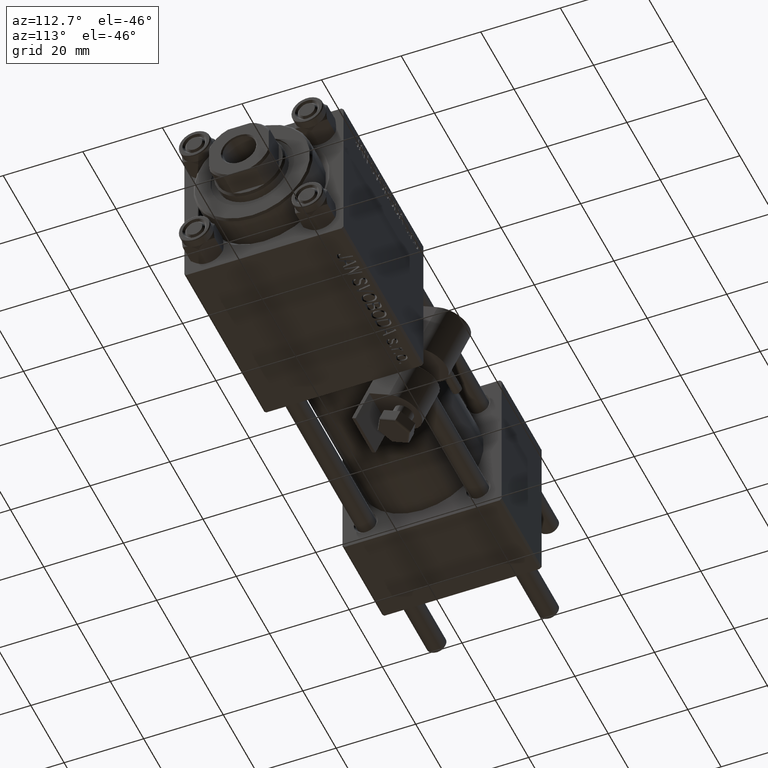
[diagram: clean part render]
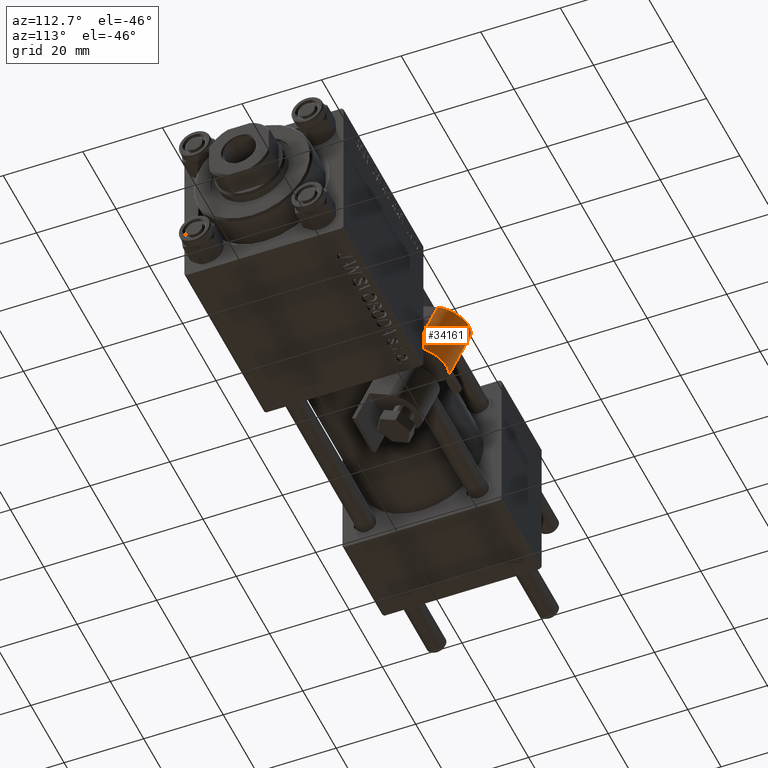
[diagram: same view with one face highlighted and labeled with its STEP entity id]
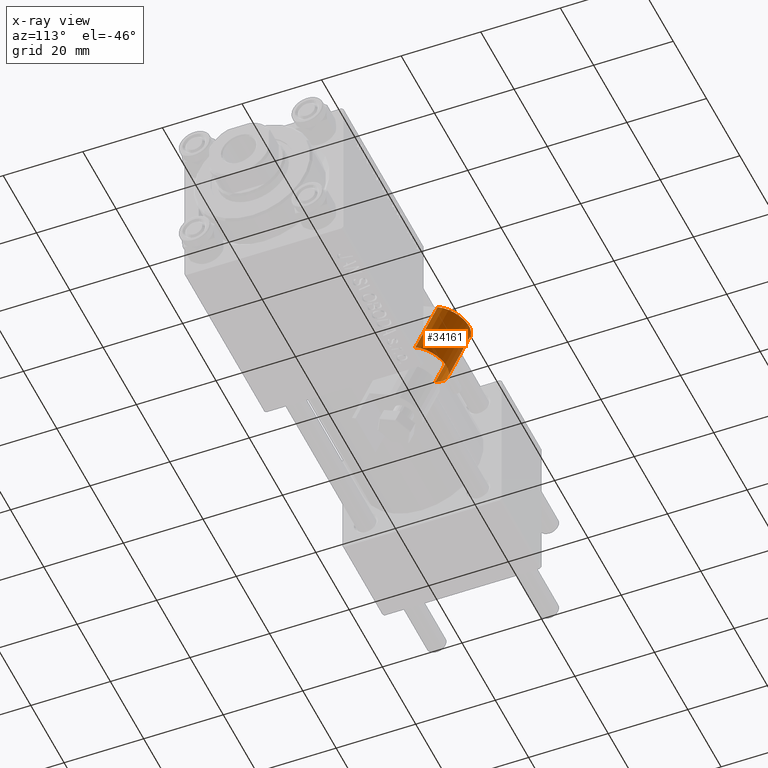
[diagram: x-ray of the same camera — body ghosted, the highlighted face saturated]
A machine part, auxiliary view. The second image highlights one B-rep face of the part: STEP entity #34161.
The next image is the same camera in x-ray: the body ghosted, the highlighted face saturated — about 0% of this face is hidden behind the body in this view.
In plain terms, the highlighted cylindrical surface (edge-blend (fillet) strip) has radius 6 mm, axis along (-0, -0.4495, -0.8933).
Its self-contained STEP definition (entity closure, byte-faithful):
#1403 = FACE_OUTER_BOUND ( 'NONE', #34371, .T. ) ;
#2477 = DIRECTION ( 'NONE',  ( 1.000000000000000000, 0.000000000000000000, 0.000000000000000000 ) ) ;
#3778 = ORIENTED_EDGE ( 'NONE', *, *, #26192, .F. ) ;
#5350 = LINE ( 'NONE', #12548, #20762 ) ;
#6240 = CARTESIAN_POINT ( 'NONE',  ( 14.74000000000000021, 6.499999999999999112, 6.000000000000006217 ) ) ;
#6497 = EDGE_CURVE ( 'NONE', #7968, #33348, #5350, .T. ) ;
#7968 = VERTEX_POINT ( 'NONE', #38916 ) ;
#9061 = DIRECTION ( 'NONE',  ( 1.000000000000000000, 0.000000000000000000, 0.000000000000000000 ) ) ;
#9712 = DIRECTION ( 'NONE',  ( -1.000000000000000000, -0.000000000000000000, -0.000000000000000000 ) ) ;
#10146 = VECTOR ( 'NONE', #34831, 1000.000000000000000 ) ;
#11023 = EDGE_CURVE ( 'NONE', #24483, #33676, #19154, .T. ) ;
#12548 = CARTESIAN_POINT ( 'NONE',  ( 27.24000000000000199, 6.499999999999999112, 6.000000000000006217 ) ) ;
#12615 = CARTESIAN_POINT ( 'NONE',  ( 14.74000000000000021, 6.500000000000000000, -5.999999999999980460 ) ) ;
#14070 = ORIENTED_EDGE ( 'NONE', *, *, #30736, .T. ) ;
#16022 = CYLINDRICAL_SURFACE ( 'NONE', #19694, 6.000000000000002665 ) ;
#19154 = LINE ( 'NONE', #30983, #10146 ) ;
#19694 = AXIS2_PLACEMENT_3D ( 'NONE', #36068, #44272, #28359 ) ;
#20762 = VECTOR ( 'NONE', #9712, 1000.000000000000000 ) ;
#24477 = CARTESIAN_POINT ( 'NONE',  ( 27.24000000000000199, 6.500000000000000000, 2.255140518769849223E-14 ) ) ;
#24483 = VERTEX_POINT ( 'NONE', #33684 ) ;
#26192 = EDGE_CURVE ( 'NONE', #24483, #7968, #43356, .T. ) ;
#28359 = DIRECTION ( 'NONE',  ( 0.000000000000000000, 0.000000000000000000, 1.000000000000000000 ) ) ;
#28581 = AXIS2_PLACEMENT_3D ( 'NONE', #34052, #2477, #49706 ) ;
#30736 = EDGE_CURVE ( 'NONE', #33676, #33348, #32682, .T. ) ;
#30983 = CARTESIAN_POINT ( 'NONE',  ( 27.24000000000000199, 6.500000000000000000, -5.999999999999980460 ) ) ;
#32682 = CIRCLE ( 'NONE', #28581, 6.000000000000002665 ) ;
#33348 = VERTEX_POINT ( 'NONE', #6240 ) ;
#33403 = ORIENTED_EDGE ( 'NONE', *, *, #6497, .F. ) ;
#33676 = VERTEX_POINT ( 'NONE', #12615 ) ;
#33684 = CARTESIAN_POINT ( 'NONE',  ( 27.24000000000000199, 6.500000000000000000, -5.999999999999980460 ) ) ;
#34052 = CARTESIAN_POINT ( 'NONE',  ( 14.74000000000000021, 6.500000000000000000, 2.255140518769849223E-14 ) ) ;
#34161 = ADVANCED_FACE ( 'NONE', ( #1403 ), #16022, .T. ) ;
#34371 = EDGE_LOOP ( 'NONE', ( #14070, #33403, #3778, #40602 ) ) ;
#34831 = DIRECTION ( 'NONE',  ( -1.000000000000000000, -0.000000000000000000, -0.000000000000000000 ) ) ;
#36068 = CARTESIAN_POINT ( 'NONE',  ( 27.24000000000000199, 6.500000000000000000, 2.255140518769849223E-14 ) ) ;
#38916 = CARTESIAN_POINT ( 'NONE',  ( 27.24000000000000199, 6.499999999999999112, 6.000000000000006217 ) ) ;
#40602 = ORIENTED_EDGE ( 'NONE', *, *, #11023, .T. ) ;
#43356 = CIRCLE ( 'NONE', #45004, 6.000000000000002665 ) ;
#44272 = DIRECTION ( 'NONE',  ( -1.000000000000000000, -0.000000000000000000, -0.000000000000000000 ) ) ;
#45004 = AXIS2_PLACEMENT_3D ( 'NONE', #24477, #9061, #47837 ) ;
#47837 = DIRECTION ( 'NONE',  ( 0.000000000000000000, 0.000000000000000000, -1.000000000000000000 ) ) ;
#49706 = DIRECTION ( 'NONE',  ( 0.000000000000000000, 0.000000000000000000, -1.000000000000000000 ) ) ;